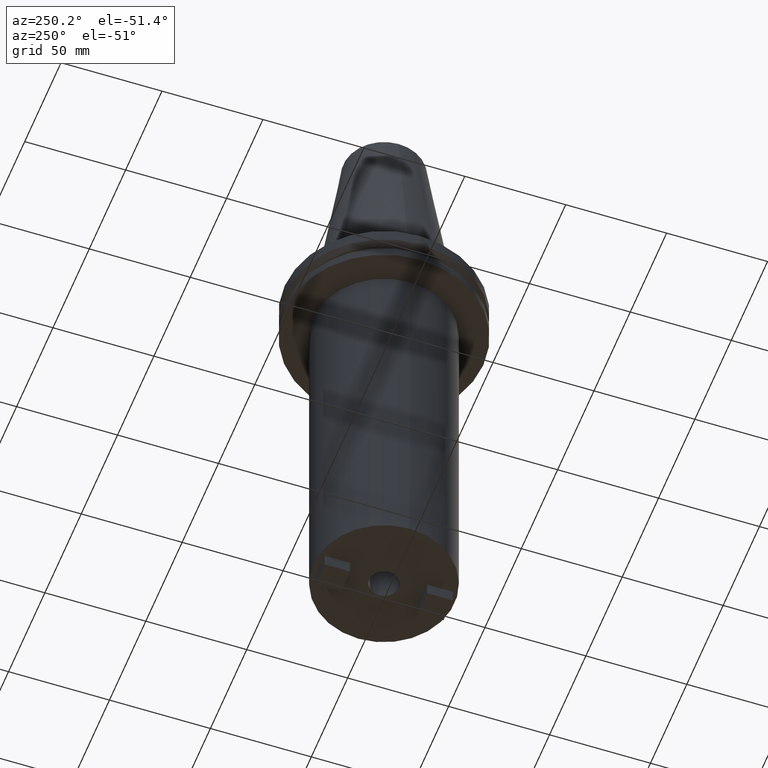
[diagram: clean part render]
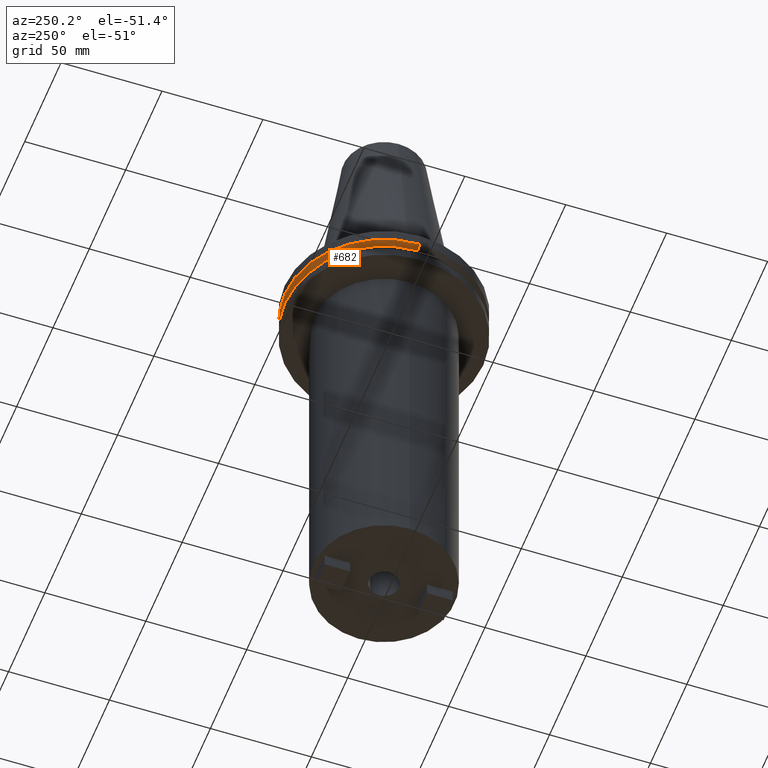
[diagram: same view with one face highlighted and labeled with its STEP entity id]
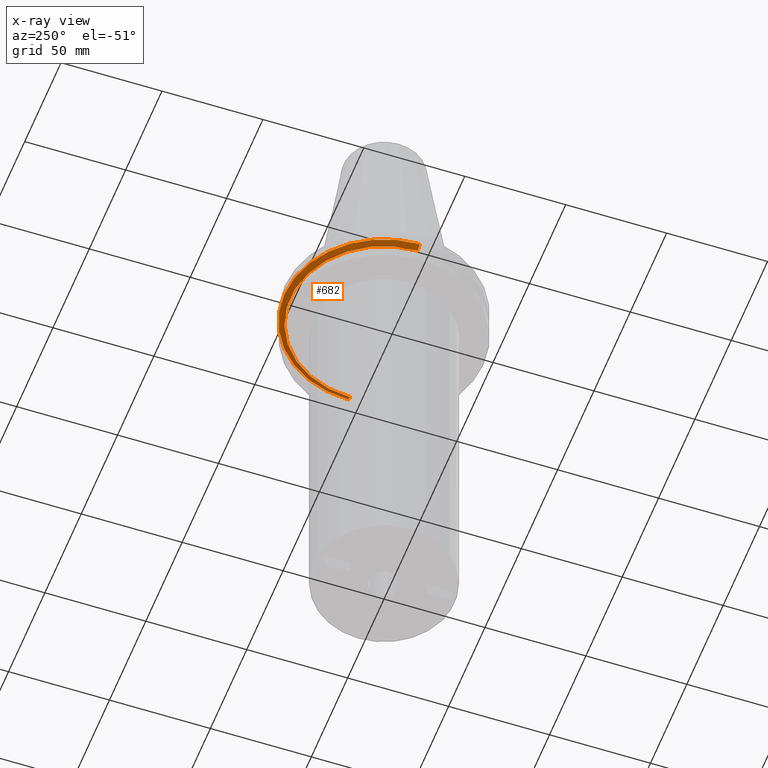
[diagram: x-ray of the same camera — body ghosted, the highlighted face saturated]
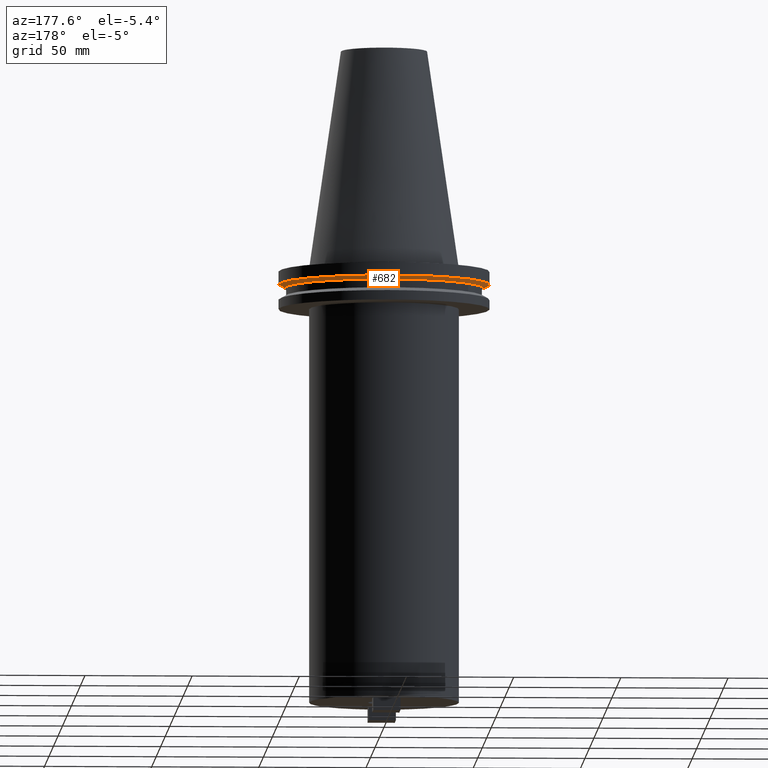
[diagram: same view with one face highlighted and labeled with its STEP entity id]
A machine part, auxiliary view. The second image highlights one B-rep face of the part: STEP entity #682.
The next image is the same camera in x-ray: the body ghosted, the highlighted face saturated — about 9% of this face is hidden behind the body in this view.
A second angle (auxiliary view) of the same face is appended — the face is thin or edge-on in the first view.
In plain terms, the highlighted conical surface has half-angle 60 deg.
Its self-contained STEP definition (entity closure, byte-faithful):
#9 = VECTOR ( 'NONE', #335, 1000.000000000000000 ) ;
#10 = DIRECTION ( 'NONE',  ( 1.000000000000000000, 0.000000000000000000, 0.000000000000000000 ) ) ;
#18 = CARTESIAN_POINT ( 'NONE',  ( 46.43919780457007818, 0.000000000000000000, -9.204999999999991189 ) ) ;
#80 = FACE_OUTER_BOUND ( 'NONE', #571, .T. ) ;
#154 = AXIS2_PLACEMENT_3D ( 'NONE', #788, #240, #318 ) ;
#155 = CARTESIAN_POINT ( 'NONE',  ( -46.43919780457007818, 5.857130358318727293E-15, -9.204999999999991189 ) ) ;
#165 = DIRECTION ( 'NONE',  ( 0.8660254037844273833, 0.000000000000000000, 0.5000000000000195399 ) ) ;
#170 = CIRCLE ( 'NONE', #559, 49.21500000000000341 ) ;
#171 = LINE ( 'NONE', #18, #668 ) ;
#212 = DIRECTION ( 'NONE',  ( 1.000000000000000000, 0.000000000000000000, 0.000000000000000000 ) ) ;
#240 = DIRECTION ( 'NONE',  ( -0.000000000000000000, -0.000000000000000000, 1.000000000000000000 ) ) ;
#292 = VERTEX_POINT ( 'NONE', #706 ) ;
#318 = DIRECTION ( 'NONE',  ( 1.000000000000000000, 0.000000000000000000, 0.000000000000000000 ) ) ;
#323 = CARTESIAN_POINT ( 'NONE',  ( 0.000000000000000000, 0.000000000000000000, -7.602389855251287187 ) ) ;
#335 = DIRECTION ( 'NONE',  ( -0.8660254037844273833, 1.060575238724893110E-16, 0.5000000000000195399 ) ) ;
#336 = EDGE_CURVE ( 'NONE', #581, #452, #170, .T. ) ;
#337 = ORIENTED_EDGE ( 'NONE', *, *, #388, .F. ) ;
#387 = CARTESIAN_POINT ( 'NONE',  ( 0.000000000000000000, 0.000000000000000000, -9.204999999999991189 ) ) ;
#388 = EDGE_CURVE ( 'NONE', #292, #581, #171, .T. ) ;
#400 = EDGE_CURVE ( 'NONE', #642, #452, #482, .T. ) ;
#441 = CIRCLE ( 'NONE', #154, 46.43919780457007818 ) ;
#452 = VERTEX_POINT ( 'NONE', #665 ) ;
#482 = LINE ( 'NONE', #566, #9 ) ;
#495 = CONICAL_SURFACE ( 'NONE', #625, 46.43919780457007818, 1.047197551196575205 ) ;
#559 = AXIS2_PLACEMENT_3D ( 'NONE', #323, #881, #10 ) ;
#566 = CARTESIAN_POINT ( 'NONE',  ( -46.43919780457007818, 5.687161494633754392E-15, -9.204999999999991189 ) ) ;
#571 = EDGE_LOOP ( 'NONE', ( #764, #941, #934, #337 ) ) ;
#581 = VERTEX_POINT ( 'NONE', #931 ) ;
#625 = AXIS2_PLACEMENT_3D ( 'NONE', #387, #913, #212 ) ;
#642 = VERTEX_POINT ( 'NONE', #155 ) ;
#665 = CARTESIAN_POINT ( 'NONE',  ( -49.21500000000000341, 6.027099222003699404E-15, -7.602389855251287187 ) ) ;
#668 = VECTOR ( 'NONE', #165, 1000.000000000000000 ) ;
#682 = ADVANCED_FACE ( 'NONE', ( #80 ), #495, .T. ) ;
#706 = CARTESIAN_POINT ( 'NONE',  ( 46.43919780457007818, 0.000000000000000000, -9.204999999999991189 ) ) ;
#734 = EDGE_CURVE ( 'NONE', #292, #642, #441, .T. ) ;
#764 = ORIENTED_EDGE ( 'NONE', *, *, #734, .T. ) ;
#788 = CARTESIAN_POINT ( 'NONE',  ( 0.000000000000000000, 0.000000000000000000, -9.204999999999991189 ) ) ;
#881 = DIRECTION ( 'NONE',  ( -0.000000000000000000, -0.000000000000000000, 1.000000000000000000 ) ) ;
#913 = DIRECTION ( 'NONE',  ( -0.000000000000000000, -0.000000000000000000, 1.000000000000000000 ) ) ;
#931 = CARTESIAN_POINT ( 'NONE',  ( 49.21500000000000341, 0.000000000000000000, -7.602389855251287187 ) ) ;
#934 = ORIENTED_EDGE ( 'NONE', *, *, #336, .F. ) ;
#941 = ORIENTED_EDGE ( 'NONE', *, *, #400, .T. ) ;